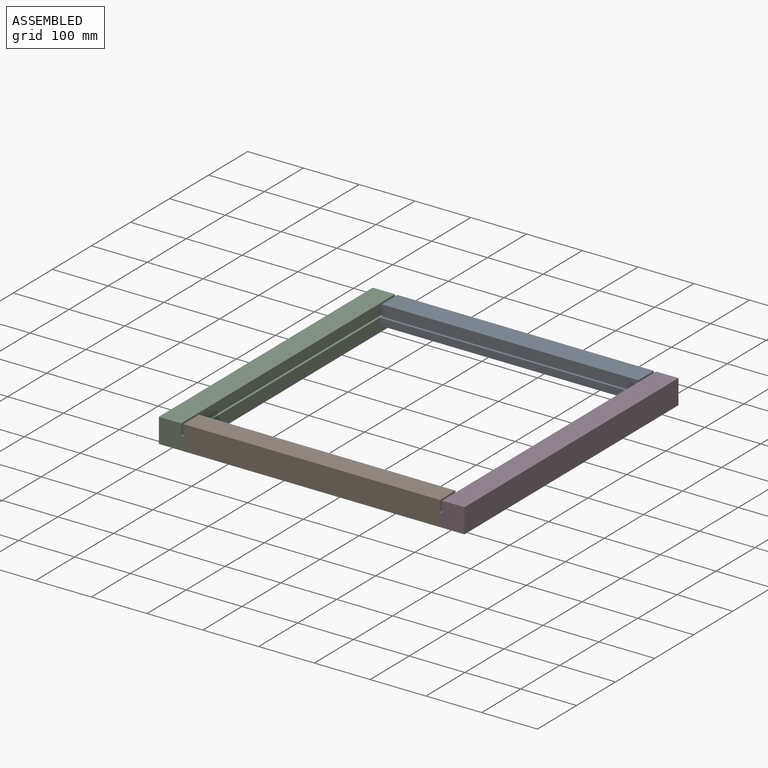
[diagram: assembled view]
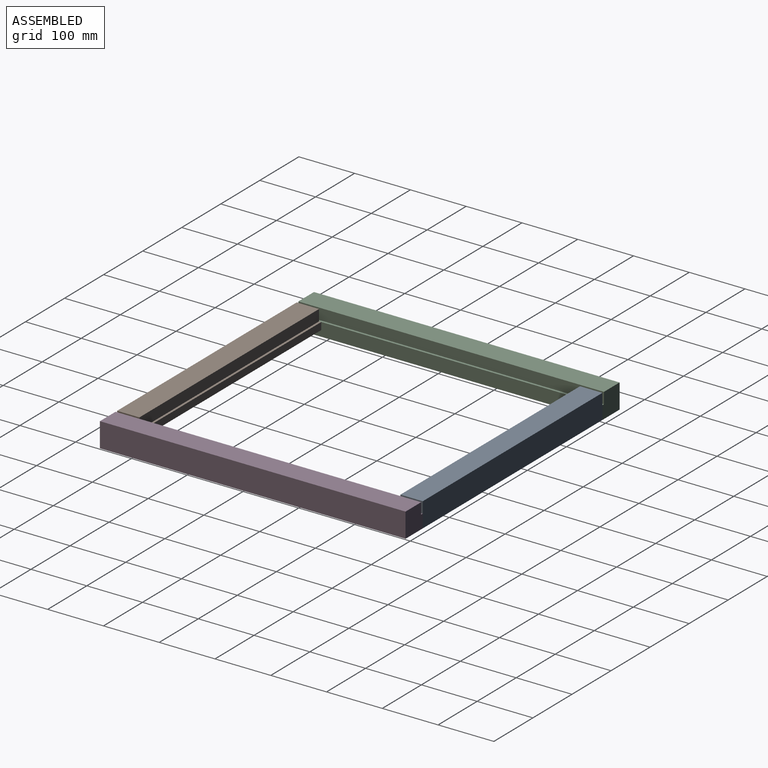
[diagram: assembled view, second angle]
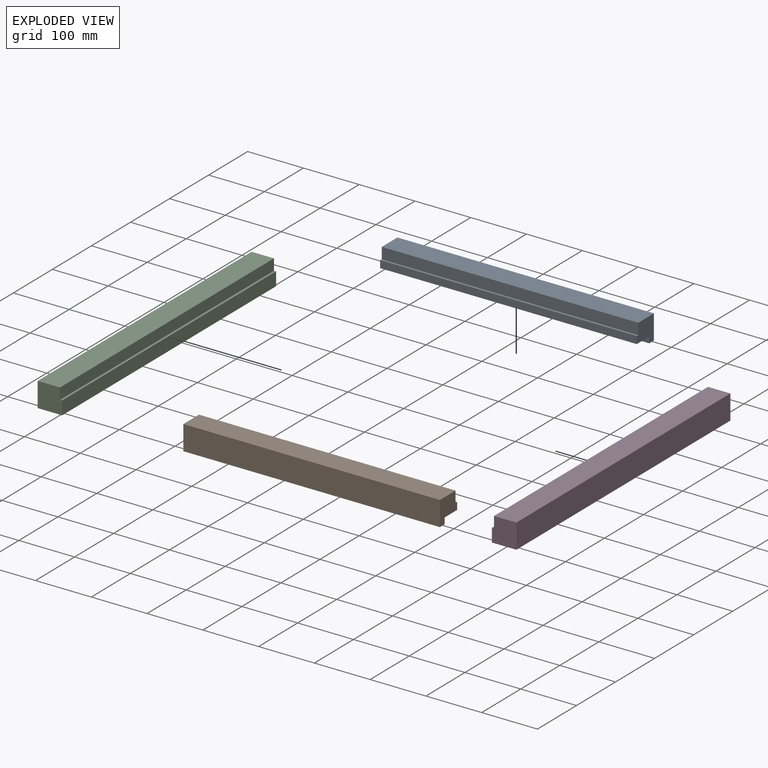
[diagram: exploded view]
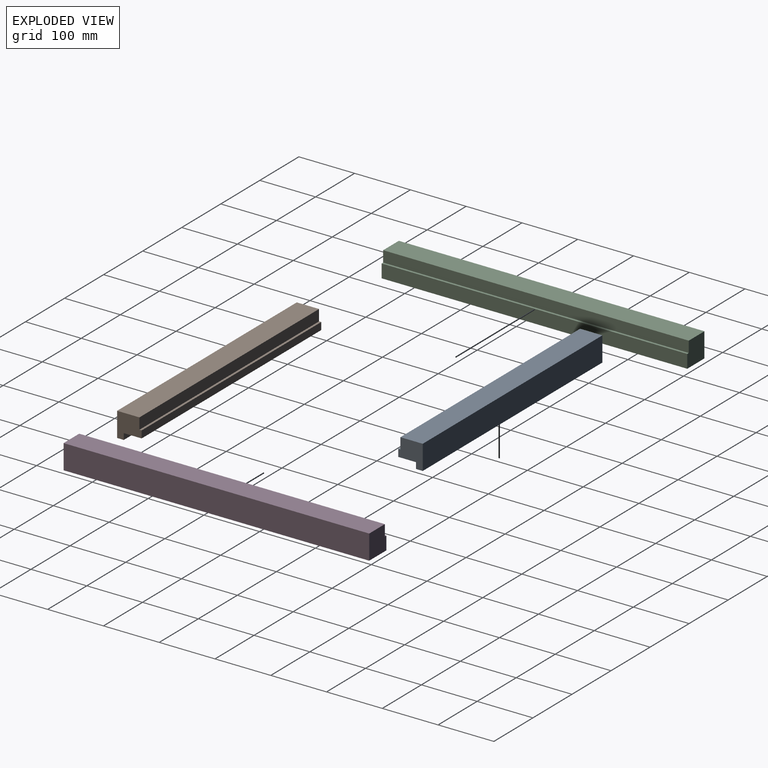
[diagram: exploded view, second angle]
ASSEMBLY  parts=4 mates=3
PART A: 10 faces, bbox 460x44x44 mm
  f0: plane 460x12mm, normal (0,0,-1), area 5520mm2, adj f2,f3,f4,f8
  f1: plane 460x13mm, normal (0,1,0), area 5980mm2, adj f2,f3,f7,f9
  f2: plane 44x44mm, normal (-1,0,0), area 1504mm2, adj f0,f1,f4,f5,f6,f7,f8,f9
  f3: plane 44x44mm, normal (1,0,0), area 1504mm2, adj f0,f1,f4,f5,f6,f7,f8,f9
  f4: plane 460x44mm, normal (0,-1,0), area 20240mm2, adj f0,f2,f3,f5
  f5: plane 460x40mm, normal (0,0,1), area 18400mm2, adj f2,f3,f4,f6
  f6: plane 460x20mm, normal (0,1,0), area 9200mm2, adj f2,f3,f5,f7
  f7: plane 460x4mm, normal (0,0,1), area 1840mm2, adj f1,f2,f3,f6
  f8: plane 460x11mm, normal (0,1,0), area 5060mm2, adj f0,f2,f3,f9
  f9: plane 460x32mm, normal (0,0,-1), area 14720mm2, adj f1,f2,f3,f8
PART B: same geometry as A
PART C: 8 faces, bbox 44x548x44 mm
  f0: plane 548x24mm, normal (1,0,0), area 13152mm2, adj f1,f4,f5,f7
  f1: plane 44x44mm, normal (0,1,0), area 1856mm2, adj f0,f2,f3,f5,f6,f7
  f2: plane 548x40mm, normal (0,0,1), area 21920mm2, adj f1,f3,f4,f6
  f3: plane 548x44mm, normal (-1,0,0), area 24112mm2, adj f1,f2,f4,f5
  f4: plane 44x44mm, normal (0,-1,0), area 1856mm2, adj f0,f2,f3,f5,f6,f7
  f5: plane 548x44mm, normal (0,0,-1), area 24112mm2, adj f0,f1,f3,f4
  f6: plane 548x20mm, normal (1,0,0), area 10960mm2, adj f1,f2,f4,f7
  f7: plane 548x4mm, normal (0,0,1), area 2192mm2, adj f0,f1,f4,f6
PART D: same geometry as C
PLACE A rot(axis=(0,0,1),180deg) t=(166.79,176.56,122.67)mm
PLACE B t=(-142.37,-220.55,122.67)mm
PLACE C t=(-190.4,-206.43,122.67)mm
PLACE D rot(axis=(0,0,1),180deg) t=(214.83,162.44,122.67)mm
MATE fastened B.f0 <-> C.f5  axis (0,0,-1) through (-217.79,-295.99,122.67)mm
MATE fastened D.f5 <-> A.f0  axis (0,0,-1) through (242.21,252.01,122.67)mm
MATE fastened A.f0 <-> C.f5  axis (0,0,-1) through (-217.79,252.01,122.67)mm
